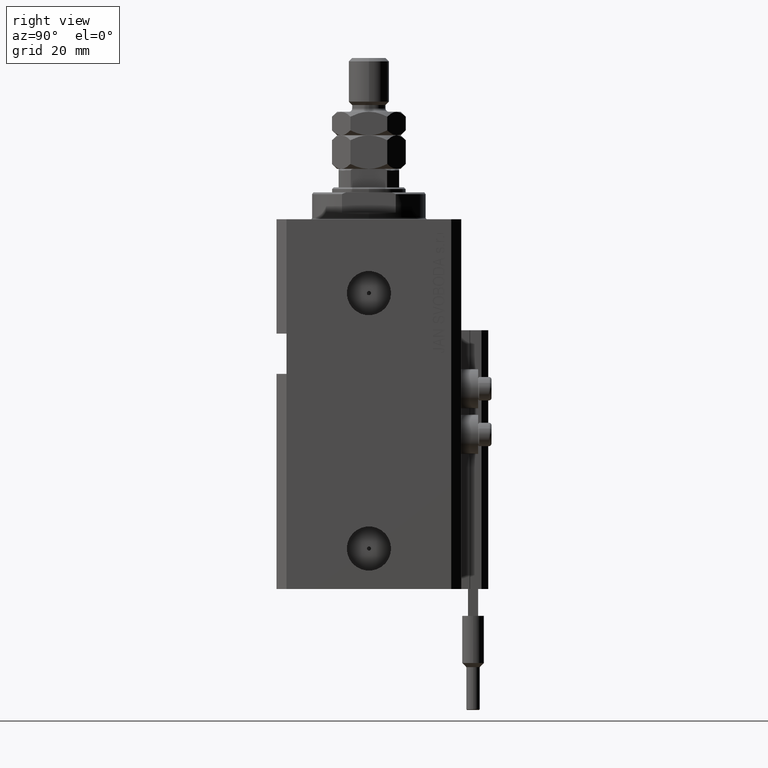
[diagram: clean part render]
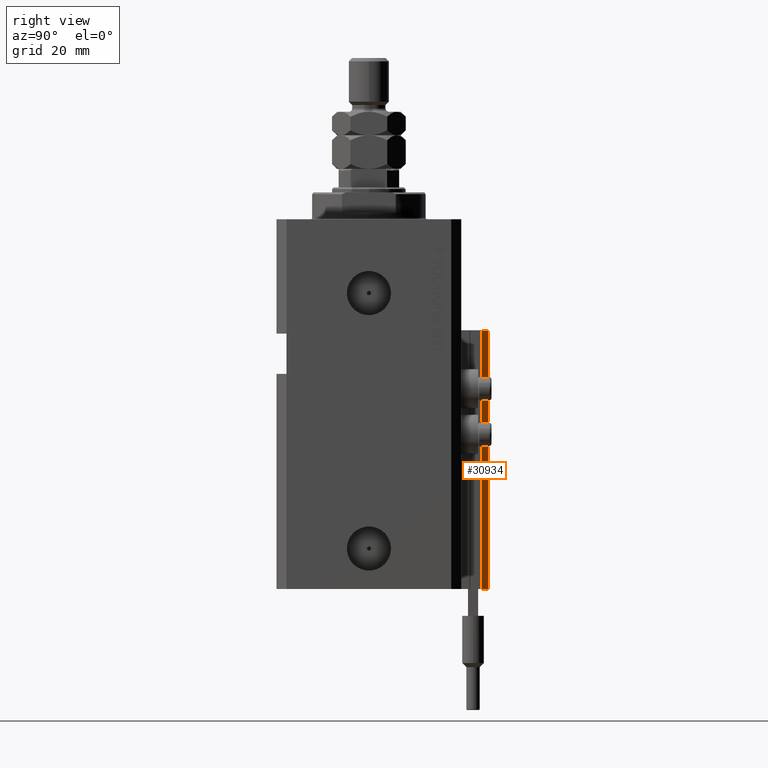
[diagram: same view with one face highlighted and labeled with its STEP entity id]
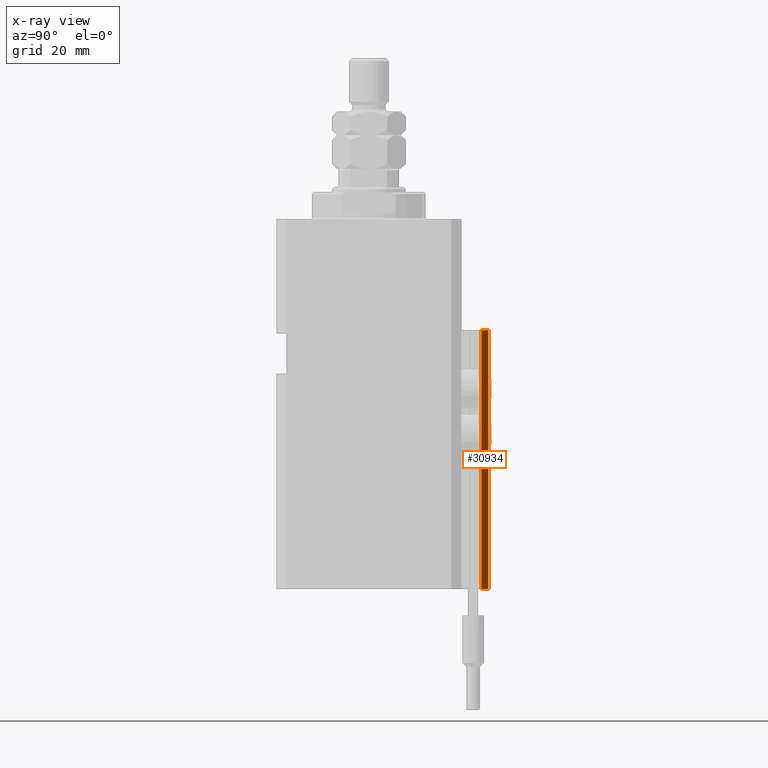
[diagram: x-ray of the same camera — body ghosted, the highlighted face saturated]
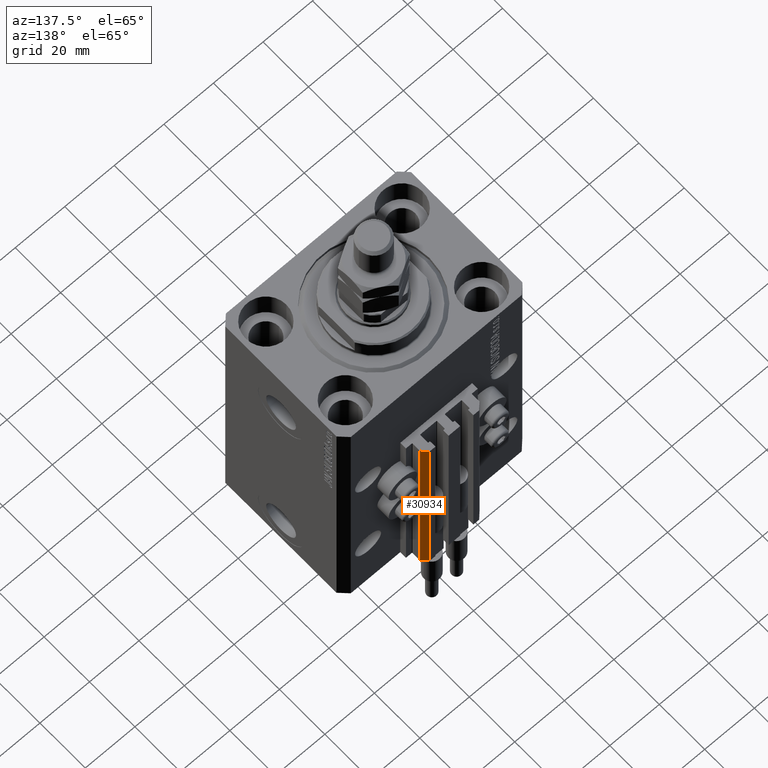
[diagram: same view with one face highlighted and labeled with its STEP entity id]
A machine part, right view. The second image highlights one B-rep face of the part: STEP entity #30934.
The next image is the same camera in x-ray: the body ghosted, the highlighted face saturated — about 0% of this face is hidden behind the body in this view.
A second angle (auxiliary view) of the same face is appended — the face is thin or edge-on in the first view.
In plain terms, the highlighted planar face has unit normal (0.7071, 0.7071, 0).
Its self-contained STEP definition (entity closure, byte-faithful):
#1619 = CARTESIAN_POINT ( 'NONE',  ( 12.00000000000000000, 33.50000000000001421, -33.00000000000000000 ) ) ;
#2255 = LINE ( 'NONE', #24867, #14346 ) ;
#5041 = ORIENTED_EDGE ( 'NONE', *, *, #15260, .T. ) ;
#5785 = CARTESIAN_POINT ( 'NONE',  ( 9.999999999999998224, 35.50000000000001421, -110.0000000000000000 ) ) ;
#6705 = PLANE ( 'NONE',  #16966 ) ;
#8051 = VERTEX_POINT ( 'NONE', #20663 ) ;
#8712 = DIRECTION ( 'NONE',  ( -0.7071067811865474617, 0.7071067811865474617, 0.000000000000000000 ) ) ;
#14048 = DIRECTION ( 'NONE',  ( -0.7071067811865474617, 0.7071067811865474617, 0.000000000000000000 ) ) ;
#14346 = VECTOR ( 'NONE', #17991, 1000.000000000000000 ) ;
#14485 = VECTOR ( 'NONE', #8712, 1000.000000000000114 ) ;
#15260 = EDGE_CURVE ( 'NONE', #33915, #40379, #2255, .T. ) ;
#16966 = AXIS2_PLACEMENT_3D ( 'NONE', #22462, #41795, #37733 ) ;
#17102 = CARTESIAN_POINT ( 'NONE',  ( 9.999999999999998224, 35.50000000000001421, -33.00000000000000000 ) ) ;
#17991 = DIRECTION ( 'NONE',  ( 0.000000000000000000, 0.000000000000000000, 1.000000000000000000 ) ) ;
#20663 = CARTESIAN_POINT ( 'NONE',  ( 12.00000000000000000, 33.50000000000001421, -110.0000000000000000 ) ) ;
#22044 = VECTOR ( 'NONE', #14048, 1000.000000000000114 ) ;
#22462 = CARTESIAN_POINT ( 'NONE',  ( 12.00000000000000000, 33.50000000000001421, -110.0000000000000000 ) ) ;
#22491 = EDGE_CURVE ( 'NONE', #8051, #28150, #42504, .T. ) ;
#22910 = CARTESIAN_POINT ( 'NONE',  ( 12.00000000000000000, 33.50000000000001421, -110.0000000000000000 ) ) ;
#23128 = EDGE_CURVE ( 'NONE', #8051, #33915, #36646, .T. ) ;
#24867 = CARTESIAN_POINT ( 'NONE',  ( 9.999999999999998224, 35.50000000000001421, -110.0000000000000000 ) ) ;
#28150 = VERTEX_POINT ( 'NONE', #46042 ) ;
#29787 = LINE ( 'NONE', #1619, #22044 ) ;
#30224 = ORIENTED_EDGE ( 'NONE', *, *, #41091, .F. ) ;
#30693 = VECTOR ( 'NONE', #34596, 1000.000000000000000 ) ;
#30934 = ADVANCED_FACE ( 'NONE', ( #33651 ), #6705, .T. ) ;
#33651 = FACE_OUTER_BOUND ( 'NONE', #47728, .T. ) ;
#33915 = VERTEX_POINT ( 'NONE', #5785 ) ;
#34596 = DIRECTION ( 'NONE',  ( 0.000000000000000000, 0.000000000000000000, 1.000000000000000000 ) ) ;
#36646 = LINE ( 'NONE', #44046, #14485 ) ;
#37733 = DIRECTION ( 'NONE',  ( -0.7071067811865474617, 0.7071067811865474617, 0.000000000000000000 ) ) ;
#40379 = VERTEX_POINT ( 'NONE', #17102 ) ;
#41091 = EDGE_CURVE ( 'NONE', #28150, #40379, #29787, .T. ) ;
#41795 = DIRECTION ( 'NONE',  ( 0.7071067811865475727, 0.7071067811865475727, -0.000000000000000000 ) ) ;
#42504 = LINE ( 'NONE', #22910, #30693 ) ;
#44046 = CARTESIAN_POINT ( 'NONE',  ( 12.00000000000000000, 33.50000000000001421, -110.0000000000000000 ) ) ;
#45496 = ORIENTED_EDGE ( 'NONE', *, *, #23128, .T. ) ;
#46042 = CARTESIAN_POINT ( 'NONE',  ( 12.00000000000000000, 33.50000000000001421, -33.00000000000000000 ) ) ;
#46211 = ORIENTED_EDGE ( 'NONE', *, *, #22491, .F. ) ;
#47728 = EDGE_LOOP ( 'NONE', ( #30224, #46211, #45496, #5041 ) ) ;